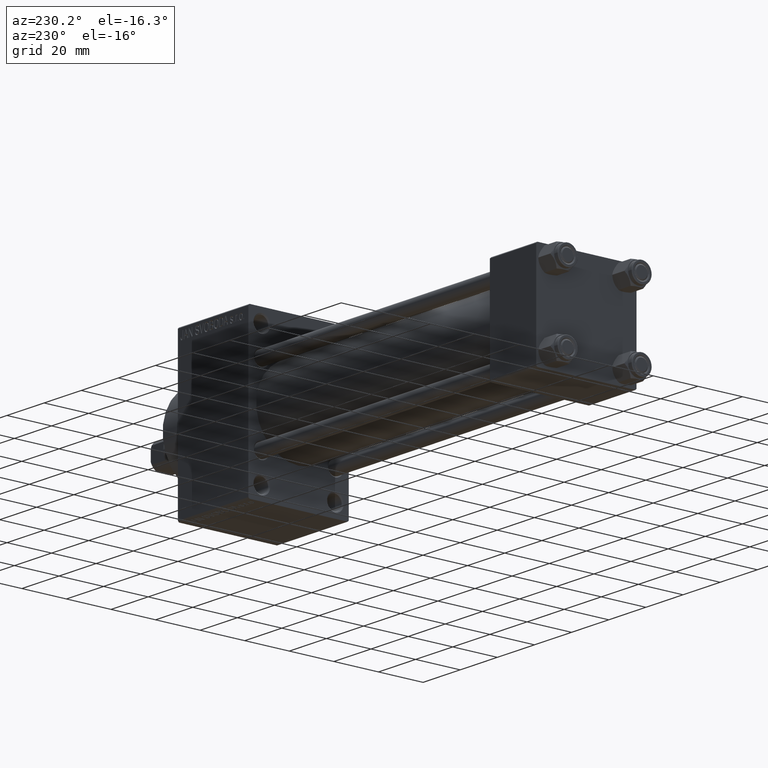
[diagram: clean part render]
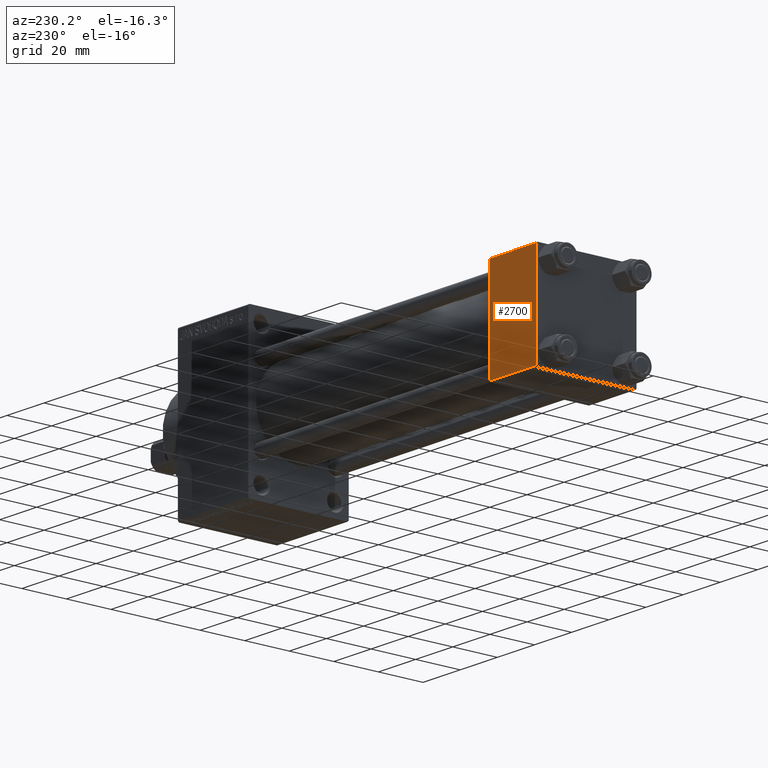
[diagram: same view with one face highlighted and labeled with its STEP entity id]
A machine part, auxiliary view. The second image highlights one B-rep face of the part: STEP entity #2700.
In plain terms, the highlighted planar face has unit normal (0, 1, 0).
Its self-contained STEP definition (entity closure, byte-faithful):
#1127 = EDGE_CURVE ( 'NONE', #3591, #40774, #21880, .T. ) ;
#2700 = ADVANCED_FACE ( 'NONE', ( #24813 ), #35855, .T. ) ;
#3591 = VERTEX_POINT ( 'NONE', #15699 ) ;
#3754 = DIRECTION ( 'NONE',  ( 0.000000000000000000, -0.000000000000000000, 1.000000000000000000 ) ) ;
#4950 = DIRECTION ( 'NONE',  ( 0.000000000000000000, 0.000000000000000000, -1.000000000000000000 ) ) ;
#6755 = EDGE_LOOP ( 'NONE', ( #31063, #16301, #27726, #32704 ) ) ;
#7512 = DIRECTION ( 'NONE',  ( -1.000000000000000000, 0.000000000000000000, 0.000000000000000000 ) ) ;
#7720 = VERTEX_POINT ( 'NONE', #39139 ) ;
#10446 = VECTOR ( 'NONE', #4950, 1000.000000000000000 ) ;
#12389 = VECTOR ( 'NONE', #7512, 1000.000000000000000 ) ;
#13984 = LINE ( 'NONE', #17822, #44373 ) ;
#15699 = CARTESIAN_POINT ( 'NONE',  ( 25.00000000000000000, 22.50000000000000000, -21.99999999999996803 ) ) ;
#16301 = ORIENTED_EDGE ( 'NONE', *, *, #1127, .T. ) ;
#17822 = CARTESIAN_POINT ( 'NONE',  ( 25.00000000000000000, 22.50000000000000000, 21.99999999999999645 ) ) ;
#19395 = CARTESIAN_POINT ( 'NONE',  ( 0.000000000000000000, 22.50000000000000000, -21.99999999999996803 ) ) ;
#21880 = LINE ( 'NONE', #22359, #12389 ) ;
#21940 = DIRECTION ( 'NONE',  ( -0.000000000000000000, 1.000000000000000000, 0.000000000000000000 ) ) ;
#22359 = CARTESIAN_POINT ( 'NONE',  ( 25.00000000000000000, 22.50000000000000000, -21.99999999999998224 ) ) ;
#22379 = AXIS2_PLACEMENT_3D ( 'NONE', #43731, #21940, #3754 ) ;
#23374 = LINE ( 'NONE', #37767, #10446 ) ;
#23925 = EDGE_CURVE ( 'NONE', #7720, #38836, #13984, .T. ) ;
#24813 = FACE_OUTER_BOUND ( 'NONE', #6755, .T. ) ;
#26375 = CARTESIAN_POINT ( 'NONE',  ( 25.00000000000000000, 22.50000000000000000, 21.99999999999999645 ) ) ;
#27726 = ORIENTED_EDGE ( 'NONE', *, *, #35530, .F. ) ;
#27896 = DIRECTION ( 'NONE',  ( 1.000000000000000000, 0.000000000000000000, 0.000000000000000000 ) ) ;
#28746 = LINE ( 'NONE', #43347, #37006 ) ;
#31063 = ORIENTED_EDGE ( 'NONE', *, *, #45189, .T. ) ;
#32704 = ORIENTED_EDGE ( 'NONE', *, *, #23925, .T. ) ;
#35530 = EDGE_CURVE ( 'NONE', #7720, #40774, #28746, .T. ) ;
#35855 = PLANE ( 'NONE',  #22379 ) ;
#37006 = VECTOR ( 'NONE', #39067, 1000.000000000000000 ) ;
#37767 = CARTESIAN_POINT ( 'NONE',  ( 25.00000000000000000, 22.50000000000000000, 22.50000000000000355 ) ) ;
#38836 = VERTEX_POINT ( 'NONE', #26375 ) ;
#39067 = DIRECTION ( 'NONE',  ( 0.000000000000000000, 0.000000000000000000, -1.000000000000000000 ) ) ;
#39139 = CARTESIAN_POINT ( 'NONE',  ( 0.000000000000000000, 22.50000000000000000, 21.99999999999999645 ) ) ;
#40774 = VERTEX_POINT ( 'NONE', #19395 ) ;
#43347 = CARTESIAN_POINT ( 'NONE',  ( 0.000000000000000000, 22.50000000000000000, 22.50000000000000355 ) ) ;
#43731 = CARTESIAN_POINT ( 'NONE',  ( 25.00000000000000000, 22.50000000000000000, 22.50000000000000355 ) ) ;
#44373 = VECTOR ( 'NONE', #27896, 1000.000000000000000 ) ;
#45189 = EDGE_CURVE ( 'NONE', #38836, #3591, #23374, .T. ) ;